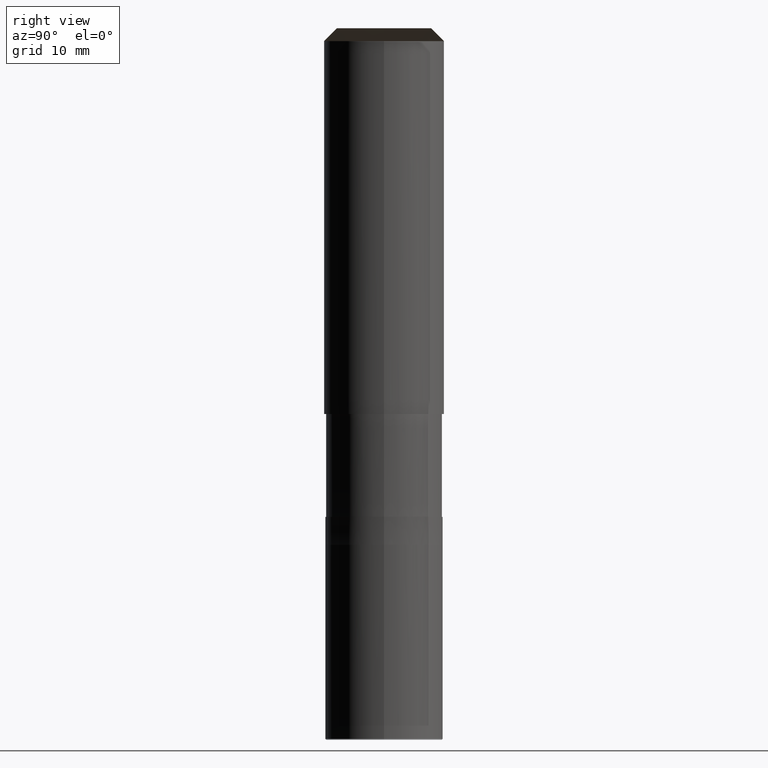
[diagram: clean part render]
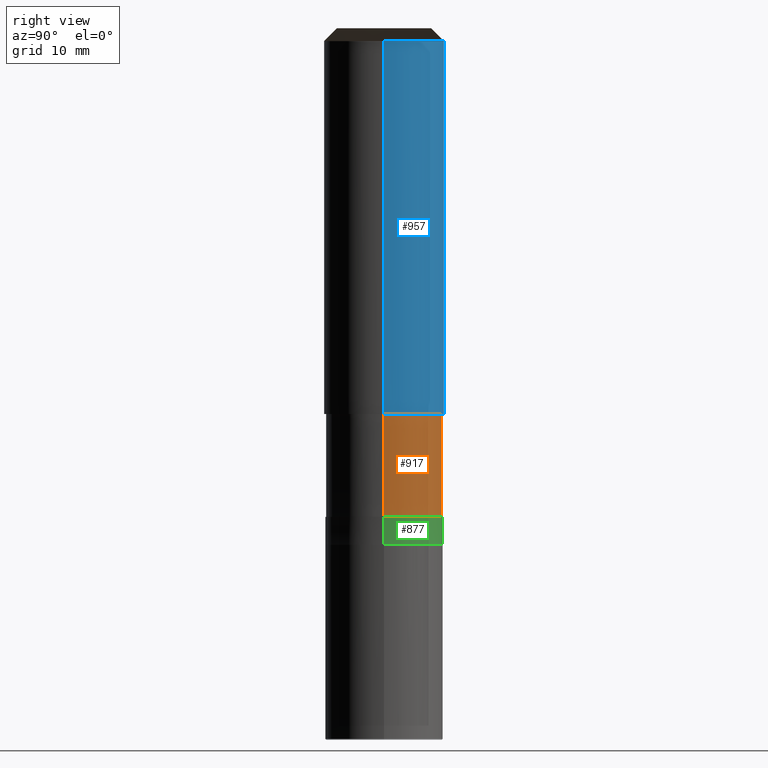
[diagram: same view with three faces highlighted in distinct colors, each labeled with its STEP entity id]
A machine part, right view with three faces highlighted in distinct colors.
Their STEP definitions:

[orange] entity #917 — the highlighted face is a freeform B-spline surface patch.
#645=CARTESIAN_POINT('',(6.75,0.0,-12.0));
#646=CARTESIAN_POINT('',(6.75,6.75,-12.0));
#647=CARTESIAN_POINT('',(0.0,6.75,-12.0));
#648=CARTESIAN_POINT('',(-6.75,6.75,-12.0));
#649=CARTESIAN_POINT('',(-6.75,0.0,-12.0));
#650=CARTESIAN_POINT('',(6.75,0.0,0.0));
#651=CARTESIAN_POINT('',(6.75,6.75,0.0));
#652=CARTESIAN_POINT('',(0.0,6.75,0.0));
#653=CARTESIAN_POINT('',(-6.75,6.75,0.0));
#654=CARTESIAN_POINT('',(-6.75,0.0,0.0));
#898=(
BOUNDED_SURFACE()
B_SPLINE_SURFACE(1,2,(
(#645,#646,#647,#648,#649),
(#650,#651,#652,#653,#654)
), .UNSPECIFIED.,.F.,.F.,.F.)
B_SPLINE_SURFACE_WITH_KNOTS((2,2),(3,2,3),(
0.0,1.0),(
0.0,0.5,1.0), .UNSPECIFIED.)
GEOMETRIC_REPRESENTATION_ITEM()
RATIONAL_B_SPLINE_SURFACE(((1.0,0.707106781187,1.0,0.707106781187,1.0),
(1.0,0.707106781187,1.0,0.707106781187,1.0)
))
REPRESENTATION_ITEM('')
SURFACE()
);
#899=(
BOUNDED_CURVE()
B_SPLINE_CURVE(2,(#649,#648,#647,#646,#645),.UNSPECIFIED.,.F.,.F.)
B_SPLINE_CURVE_WITH_KNOTS((3,2,3),
(0.0,0.5,1.0),.UNSPECIFIED.)
CURVE()
GEOMETRIC_REPRESENTATION_ITEM()
RATIONAL_B_SPLINE_CURVE((1.0,0.707106781187,1.0,0.707106781187,1.0))
REPRESENTATION_ITEM('')
);
#900=(
BOUNDED_CURVE()
B_SPLINE_CURVE(1,(#645,#650),.UNSPECIFIED.,.F.,.F.)
B_SPLINE_CURVE_WITH_KNOTS((2,2),
(0.0,1.0),.UNSPECIFIED.)
CURVE()
GEOMETRIC_REPRESENTATION_ITEM()
RATIONAL_B_SPLINE_CURVE((1.0,1.0))
REPRESENTATION_ITEM('')
);
#901=(
BOUNDED_CURVE()
B_SPLINE_CURVE(2,(#650,#651,#652,#653,#654),.UNSPECIFIED.,.F.,.F.)
B_SPLINE_CURVE_WITH_KNOTS((3,2,3),
(0.0,0.5,1.0),.UNSPECIFIED.)
CURVE()
GEOMETRIC_REPRESENTATION_ITEM()
RATIONAL_B_SPLINE_CURVE((1.0,0.707106781187,1.0,0.707106781187,1.0))
REPRESENTATION_ITEM('')
);
#902=(
BOUNDED_CURVE()
B_SPLINE_CURVE(1,(#654,#649),.UNSPECIFIED.,.F.,.F.)
B_SPLINE_CURVE_WITH_KNOTS((2,2),
(0.0,1.0),.UNSPECIFIED.)
CURVE()
GEOMETRIC_REPRESENTATION_ITEM()
RATIONAL_B_SPLINE_CURVE((1.0,1.0))
REPRESENTATION_ITEM('')
);
#903=VERTEX_POINT('',#645);
#904=VERTEX_POINT('',#649);
#905=VERTEX_POINT('',#650);
#906=VERTEX_POINT('',#654);
#907=EDGE_CURVE('',#904,#903,#899,.T.);
#908=EDGE_CURVE('',#903,#905,#900,.T.);
#909=EDGE_CURVE('',#905,#906,#901,.T.);
#910=EDGE_CURVE('',#906,#904,#902,.T.);
#911=ORIENTED_EDGE('',*,*,#907,.T.);
#912=ORIENTED_EDGE('',*,*,#908,.T.);
#913=ORIENTED_EDGE('',*,*,#909,.T.);
#914=ORIENTED_EDGE('',*,*,#910,.T.);
#915=EDGE_LOOP('',(#911,#912,#913,#914));
#916=FACE_OUTER_BOUND('',#915,.T.);
#917=ADVANCED_FACE('',(#916),#898,.T.);

[blue] entity #957 — the highlighted face is a freeform B-spline surface patch.
#655=CARTESIAN_POINT('',(7.0,0.0,0.0));
#656=CARTESIAN_POINT('',(7.0,7.0,0.0));
#657=CARTESIAN_POINT('',(0.0,7.0,0.0));
#658=CARTESIAN_POINT('',(-7.0,7.0,0.0));
#659=CARTESIAN_POINT('',(-7.0,0.0,0.0));
#660=CARTESIAN_POINT('',(7.0,0.0,43.5));
#661=CARTESIAN_POINT('',(7.0,7.0,43.5));
#662=CARTESIAN_POINT('',(0.0,7.0,43.5));
#663=CARTESIAN_POINT('',(-7.0,7.0,43.5));
#664=CARTESIAN_POINT('',(-7.0,0.0,43.5));
#938=(
BOUNDED_SURFACE()
B_SPLINE_SURFACE(1,2,(
(#655,#656,#657,#658,#659),
(#660,#661,#662,#663,#664)
), .UNSPECIFIED.,.F.,.F.,.F.)
B_SPLINE_SURFACE_WITH_KNOTS((2,2),(3,2,3),(
0.0,1.0),(
0.0,0.5,1.0), .UNSPECIFIED.)
GEOMETRIC_REPRESENTATION_ITEM()
RATIONAL_B_SPLINE_SURFACE(((1.0,0.707106781187,1.0,0.707106781187,1.0),
(1.0,0.707106781187,1.0,0.707106781187,1.0)
))
REPRESENTATION_ITEM('')
SURFACE()
);
#939=(
BOUNDED_CURVE()
B_SPLINE_CURVE(2,(#659,#658,#657,#656,#655),.UNSPECIFIED.,.F.,.F.)
B_SPLINE_CURVE_WITH_KNOTS((3,2,3),
(0.0,0.5,1.0),.UNSPECIFIED.)
CURVE()
GEOMETRIC_REPRESENTATION_ITEM()
RATIONAL_B_SPLINE_CURVE((1.0,0.707106781187,1.0,0.707106781187,1.0))
REPRESENTATION_ITEM('')
);
#940=(
BOUNDED_CURVE()
B_SPLINE_CURVE(1,(#655,#660),.UNSPECIFIED.,.F.,.F.)
B_SPLINE_CURVE_WITH_KNOTS((2,2),
(0.0,1.0),.UNSPECIFIED.)
CURVE()
GEOMETRIC_REPRESENTATION_ITEM()
RATIONAL_B_SPLINE_CURVE((1.0,1.0))
REPRESENTATION_ITEM('')
);
#941=(
BOUNDED_CURVE()
B_SPLINE_CURVE(2,(#660,#661,#662,#663,#664),.UNSPECIFIED.,.F.,.F.)
B_SPLINE_CURVE_WITH_KNOTS((3,2,3),
(0.0,0.5,1.0),.UNSPECIFIED.)
CURVE()
GEOMETRIC_REPRESENTATION_ITEM()
RATIONAL_B_SPLINE_CURVE((1.0,0.707106781187,1.0,0.707106781187,1.0))
REPRESENTATION_ITEM('')
);
#942=(
BOUNDED_CURVE()
B_SPLINE_CURVE(1,(#664,#659),.UNSPECIFIED.,.F.,.F.)
B_SPLINE_CURVE_WITH_KNOTS((2,2),
(0.0,1.0),.UNSPECIFIED.)
CURVE()
GEOMETRIC_REPRESENTATION_ITEM()
RATIONAL_B_SPLINE_CURVE((1.0,1.0))
REPRESENTATION_ITEM('')
);
#943=VERTEX_POINT('',#655);
#944=VERTEX_POINT('',#659);
#945=VERTEX_POINT('',#660);
#946=VERTEX_POINT('',#664);
#947=EDGE_CURVE('',#944,#943,#939,.T.);
#948=EDGE_CURVE('',#943,#945,#940,.T.);
#949=EDGE_CURVE('',#945,#946,#941,.T.);
#950=EDGE_CURVE('',#946,#944,#942,.T.);
#951=ORIENTED_EDGE('',*,*,#947,.T.);
#952=ORIENTED_EDGE('',*,*,#948,.T.);
#953=ORIENTED_EDGE('',*,*,#949,.T.);
#954=ORIENTED_EDGE('',*,*,#950,.T.);
#955=EDGE_LOOP('',(#951,#952,#953,#954));
#956=FACE_OUTER_BOUND('',#955,.T.);
#957=ADVANCED_FACE('',(#956),#938,.T.);

[green] entity #877 — the highlighted face is a freeform B-spline surface patch.
#625=CARTESIAN_POINT('',(6.85,0.0,-15.25));
#626=CARTESIAN_POINT('',(6.85,6.85,-15.25));
#627=CARTESIAN_POINT('',(0.0,6.85,-15.25));
#628=CARTESIAN_POINT('',(-6.85,6.85,-15.25));
#629=CARTESIAN_POINT('',(-6.85,0.0,-15.25));
#640=CARTESIAN_POINT('',(6.85,0.0,-12.0));
#641=CARTESIAN_POINT('',(6.85,6.85,-12.0));
#642=CARTESIAN_POINT('',(0.0,6.85,-12.0));
#643=CARTESIAN_POINT('',(-6.85,6.85,-12.0));
#644=CARTESIAN_POINT('',(-6.85,0.0,-12.0));
#858=(
BOUNDED_SURFACE()
B_SPLINE_SURFACE(1,2,(
(#625,#626,#627,#628,#629),
(#640,#641,#642,#643,#644)
), .UNSPECIFIED.,.F.,.F.,.F.)
B_SPLINE_SURFACE_WITH_KNOTS((2,2),(3,2,3),(
0.0,1.0),(
0.0,0.5,1.0), .UNSPECIFIED.)
GEOMETRIC_REPRESENTATION_ITEM()
RATIONAL_B_SPLINE_SURFACE(((1.0,0.707106781187,1.0,0.707106781187,1.0),
(1.0,0.707106781187,1.0,0.707106781187,1.0)
))
REPRESENTATION_ITEM('')
SURFACE()
);
#859=(
BOUNDED_CURVE()
B_SPLINE_CURVE(2,(#629,#628,#627,#626,#625),.UNSPECIFIED.,.F.,.F.)
B_SPLINE_CURVE_WITH_KNOTS((3,2,3),
(0.0,0.5,1.0),.UNSPECIFIED.)
CURVE()
GEOMETRIC_REPRESENTATION_ITEM()
RATIONAL_B_SPLINE_CURVE((1.0,0.707106781187,1.0,0.707106781187,1.0))
REPRESENTATION_ITEM('')
);
#860=(
BOUNDED_CURVE()
B_SPLINE_CURVE(1,(#625,#640),.UNSPECIFIED.,.F.,.F.)
B_SPLINE_CURVE_WITH_KNOTS((2,2),
(0.0,1.0),.UNSPECIFIED.)
CURVE()
GEOMETRIC_REPRESENTATION_ITEM()
RATIONAL_B_SPLINE_CURVE((1.0,1.0))
REPRESENTATION_ITEM('')
);
#861=(
BOUNDED_CURVE()
B_SPLINE_CURVE(2,(#640,#641,#642,#643,#644),.UNSPECIFIED.,.F.,.F.)
B_SPLINE_CURVE_WITH_KNOTS((3,2,3),
(0.0,0.5,1.0),.UNSPECIFIED.)
CURVE()
GEOMETRIC_REPRESENTATION_ITEM()
RATIONAL_B_SPLINE_CURVE((1.0,0.707106781187,1.0,0.707106781187,1.0))
REPRESENTATION_ITEM('')
);
#862=(
BOUNDED_CURVE()
B_SPLINE_CURVE(1,(#644,#629),.UNSPECIFIED.,.F.,.F.)
B_SPLINE_CURVE_WITH_KNOTS((2,2),
(0.0,1.0),.UNSPECIFIED.)
CURVE()
GEOMETRIC_REPRESENTATION_ITEM()
RATIONAL_B_SPLINE_CURVE((1.0,1.0))
REPRESENTATION_ITEM('')
);
#863=VERTEX_POINT('',#625);
#864=VERTEX_POINT('',#629);
#865=VERTEX_POINT('',#640);
#866=VERTEX_POINT('',#644);
#867=EDGE_CURVE('',#864,#863,#859,.T.);
#868=EDGE_CURVE('',#863,#865,#860,.T.);
#869=EDGE_CURVE('',#865,#866,#861,.T.);
#870=EDGE_CURVE('',#866,#864,#862,.T.);
#871=ORIENTED_EDGE('',*,*,#867,.T.);
#872=ORIENTED_EDGE('',*,*,#868,.T.);
#873=ORIENTED_EDGE('',*,*,#869,.T.);
#874=ORIENTED_EDGE('',*,*,#870,.T.);
#875=EDGE_LOOP('',(#871,#872,#873,#874));
#876=FACE_OUTER_BOUND('',#875,.T.);
#877=ADVANCED_FACE('',(#876),#858,.T.);